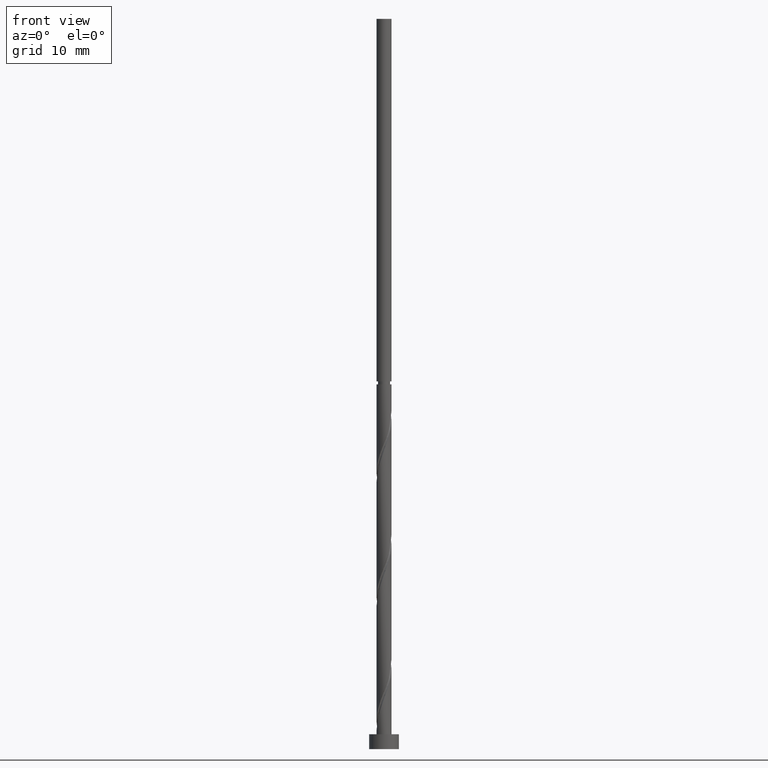
[diagram: clean part render]
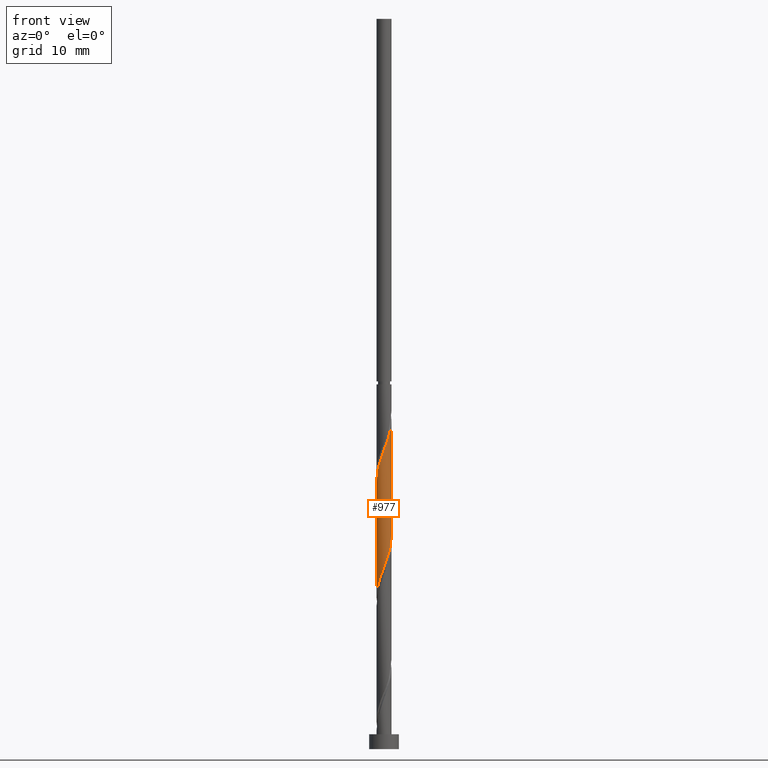
[diagram: same view with one face highlighted and labeled with its STEP entity id]
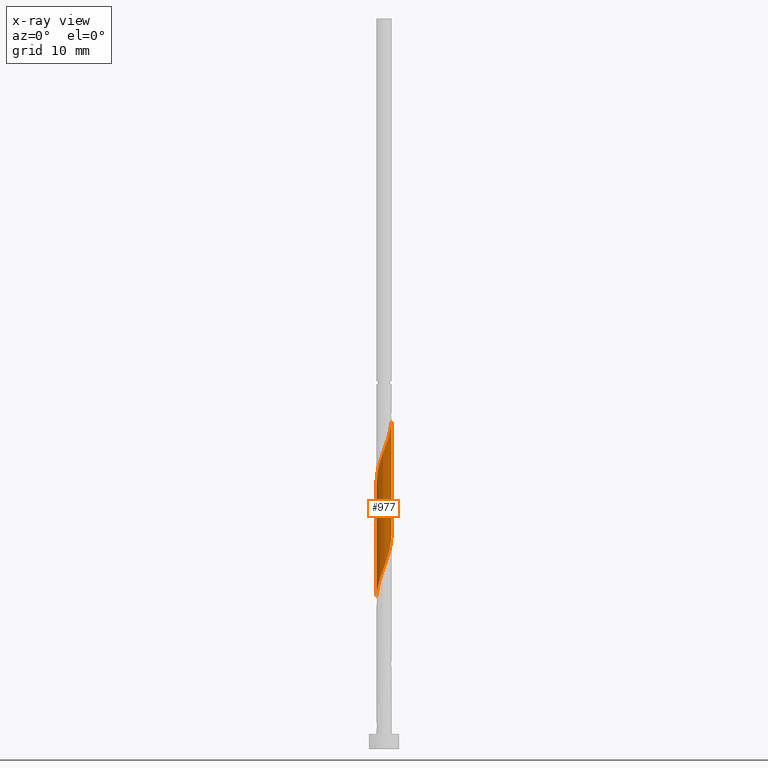
[diagram: x-ray of the same camera — body ghosted, the highlighted face saturated]
A machine part, front view. The second image highlights one B-rep face of the part: STEP entity #977.
The next image is the same camera in x-ray: the body ghosted, the highlighted face saturated — about 0% of this face is hidden behind the body in this view.
In plain terms, the highlighted cylindrical surface (edge-blend (fillet) strip) has radius 1 mm, axis along (-0, -0, -1).
Its self-contained STEP definition (entity closure, byte-faithful):
#1 = EDGE_CURVE ( 'NONE', #1191, #394, #1484, .T. ) ;
#11 = FACE_OUTER_BOUND ( 'NONE', #1418, .T. ) ;
#13 = ORIENTED_EDGE ( 'NONE', *, *, #1165, .F. ) ;
#17 = DIRECTION ( 'NONE',  ( -1.000000000000000000, 0.000000000000000000, 0.000000000000000000 ) ) ;
#74 = CARTESIAN_POINT ( 'NONE',  ( -0.8921910604809015766, -0.4848570054394701900, 21.62982950787138847 ) ) ;
#83 = CARTESIAN_POINT ( 'NONE',  ( 0.6725544933721948615, -0.7607638645273817612, 42.00019987824175871 ) ) ;
#86 = ORIENTED_EDGE ( 'NONE', *, *, #1, .F. ) ;
#93 = CARTESIAN_POINT ( 'NONE',  ( -0.4774909380590728336, -0.8786366735297755914, 38.75945913750101823 ) ) ;
#94 = CARTESIAN_POINT ( 'NONE',  ( 0.4774909380590723895, -0.8786366735297754804, 25.79649617453804922 ) ) ;
#112 = CARTESIAN_POINT ( 'NONE',  ( 0.3717979285156121083, -0.9449113738744321367, 41.07427395231583489 ) ) ;
#152 = CARTESIAN_POINT ( 'NONE',  ( -1.000000000000000000, 0.000000000000000000, 98.00000000000000000 ) ) ;
#159 = VECTOR ( 'NONE', #201, 1000.000000000000000 ) ;
#163 =( BOUNDED_CURVE ( )  B_SPLINE_CURVE ( 2, ( #1211, #933, #798, #539, #774, #1201, #1093, #1356, #94, #944, #1658, #1234, #1523, #1514, #252, #814, #1101, #74, #210, #1343, #634 ),
 .UNSPECIFIED., .F., .T. ) 
 B_SPLINE_CURVE_WITH_KNOTS ( ( 3, 2, 2, 2, 2, 2, 2, 2, 2, 2, 3 ),
 ( 0.5545248053855292847, 0.5555555555555555802, 0.5694444444444444198, 0.5833333333333333703, 0.5972222222222222099, 0.6111111111111111605, 0.6250000000000000000, 0.6388888888888888395, 0.6527777777777777901, 0.6666666666666666297, 0.6795248053855540427 ),
 .UNSPECIFIED. ) 
 CURVE ( )  GEOMETRIC_REPRESENTATION_ITEM ( )  RATIONAL_B_SPLINE_CURVE ( ( 0.9071930855141309147, 0.9080659294509785262, 0.9090909090909183865, 0.8952797754656526275, 0.9090909090909183865, 0.8952797754656526275, 0.9090909090909183865, 0.8952797754656526275, 0.9090909090909183865, 0.8952797754656526275, 0.9090909090909183865, 0.8952797754656526275, 0.9090909090909183865, 0.8952797754656526275, 0.9090909090909183865, 0.8952797754656526275, 0.9090909090909183865, 0.8952797754656526275, 0.9090909090909183865, 0.8963047551055679518, 0.9071930855141728811 ) ) 
 REPRESENTATION_ITEM ( '' )  );
#201 = DIRECTION ( 'NONE',  ( -0.000000000000000000, -0.000000000000000000, -1.000000000000000000 ) ) ;
#210 = CARTESIAN_POINT ( 'NONE',  ( -0.9482036394194104378, -0.3176631206038670885, 21.16686654490841235 ) ) ;
#252 = CARTESIAN_POINT ( 'NONE',  ( -0.5221762109439037625, -0.8528376192009062828, 23.01871839676027065 ) ) ;
#270 = LINE ( 'NONE', #152, #485 ) ;
#299 = DIRECTION ( 'NONE',  ( -0.000000000000000000, -0.000000000000000000, -1.000000000000000000 ) ) ;
#350 = CARTESIAN_POINT ( 'NONE',  ( 0.8921910604809015766, -0.4848570054394704676, 42.92612580416769674 ) ) ;
#362 = CARTESIAN_POINT ( 'NONE',  ( 1.000000000000001332, -6.871924611570983959E-16, 44.24712276769746921 ) ) ;
#392 = CARTESIAN_POINT ( 'NONE',  ( -0.7492061519980943718, -0.6623368793961351697, 37.83353321157508731 ) ) ;
#394 = VERTEX_POINT ( 'NONE', #1536 ) ;
#485 = VECTOR ( 'NONE', #707, 1000.000000000000000 ) ;
#530 = CARTESIAN_POINT ( 'NONE',  ( -0.9951180796480333379, -0.2020673444260032148, 36.44464432268620868 ) ) ;
#531 = VERTEX_POINT ( 'NONE', #1829 ) ;
#539 = CARTESIAN_POINT ( 'NONE',  ( 0.9951180796480333379, -0.2020673444260034091, 28.11131098935286943 ) ) ;
#546 = CARTESIAN_POINT ( 'NONE',  ( -1.000000000000001554, -2.108261653930336723E-15, 35.91378943436414062 ) ) ;
#634 = CARTESIAN_POINT ( 'NONE',  ( -1.000000000000001110, 6.171249733105101995E-13, 20.30883254433996754 ) ) ;
#654 = CARTESIAN_POINT ( 'NONE',  ( 0.7823727769265483856, -0.6228104349834256981, 42.46316284120471352 ) ) ;
#700 = CARTESIAN_POINT ( 'NONE',  ( 1.000000000000001332, -6.871924611570983959E-16, 44.24712276769746921 ) ) ;
#707 = DIRECTION ( 'NONE',  ( -0.000000000000000000, -0.000000000000000000, -1.000000000000000000 ) ) ;
#774 = CARTESIAN_POINT ( 'NONE',  ( 0.9305560469009571678, -0.3661494825560535626, 27.64834802638990396 ) ) ;
#787 = CARTESIAN_POINT ( 'NONE',  ( -0.8659940141538819969, -0.5302316206861042991, 37.37057024861213250 ) ) ;
#798 = CARTESIAN_POINT ( 'NONE',  ( 0.9996671490029762630, -0.02579905432886956188, 28.57427395231581713 ) ) ;
#814 = CARTESIAN_POINT ( 'NONE',  ( -0.6725544933721951946, -0.7607638645273816502, 22.55575543379731229 ) ) ;
#872 = CARTESIAN_POINT ( 'NONE',  ( 0.000000000000000000, 0.000000000000000000, 98.00000000000000000 ) ) ;
#912 = ORIENTED_EDGE ( 'NONE', *, *, #1215, .T. ) ;
#932 = CARTESIAN_POINT ( 'NONE',  ( -1.000000000000001554, -2.108261653930336723E-15, 35.91378943436413351 ) ) ;
#933 = CARTESIAN_POINT ( 'NONE',  ( 1.000000000000001332, -0.01290167433201569805, 28.60814850374258000 ) ) ;
#944 = CARTESIAN_POINT ( 'NONE',  ( 0.3225635862758375882, -0.9628312089533849205, 25.33353321157509441 ) ) ;
#977 = ADVANCED_FACE ( 'NONE', ( #11 ), #1052, .T. ) ;
#1052 = CYLINDRICAL_SURFACE ( 'NONE', #1080, 1.000000000000000000 ) ;
#1061 = CARTESIAN_POINT ( 'NONE',  ( 0.5221762109439035404, -0.8528376192009065049, 41.53723691527878970 ) ) ;
#1080 = AXIS2_PLACEMENT_3D ( 'NONE', #872, #299, #17 ) ;
#1092 = CARTESIAN_POINT ( 'NONE',  ( -1.000000000000001332, -0.01290167433201653419, 35.94780680829648389 ) ) ;
#1093 = CARTESIAN_POINT ( 'NONE',  ( 0.7492061519980940387, -0.6623368793961357248, 26.72242210046396593 ) ) ;
#1101 = CARTESIAN_POINT ( 'NONE',  ( -0.7823727769265482745, -0.6228104349834253650, 22.09279247083434328 ) ) ;
#1165 = EDGE_CURVE ( 'NONE', #394, #531, #163, .T. ) ;
#1191 = VERTEX_POINT ( 'NONE', #700 ) ;
#1200 = VERTEX_POINT ( 'NONE', #546 ) ;
#1201 = CARTESIAN_POINT ( 'NONE',  ( 0.8659940141538814418, -0.5302316206861048542, 27.18538506342693495 ) ) ;
#1211 = CARTESIAN_POINT ( 'NONE',  ( 1.000000000000001554, 8.963379928136170054E-17, 28.64216587767493394 ) ) ;
#1215 = EDGE_CURVE ( 'NONE', #1200, #531, #270, .T. ) ;
#1222 = CARTESIAN_POINT ( 'NONE',  ( 0.9482036394194104378, -0.3176631206038679767, 43.38908876713064444 ) ) ;
#1234 = CARTESIAN_POINT ( 'NONE',  ( -0.02619704632702029440, -1.015088626125574711, 24.40760728564916349 ) ) ;
#1343 = CARTESIAN_POINT ( 'NONE',  ( -1.000000000000101918, -0.1630543718201604986, 20.73875205670640298 ) ) ;
#1354 = CARTESIAN_POINT ( 'NONE',  ( 0.02619704632701955541, -1.015088626125574711, 40.14834802638991818 ) ) ;
#1356 = CARTESIAN_POINT ( 'NONE',  ( 0.6324182898423068577, -0.7944421381061669285, 26.25945913750101113 ) ) ;
#1364 = CARTESIAN_POINT ( 'NONE',  ( -0.9996671490029762630, -0.02579905432886912472, 35.98168135972323256 ) ) ;
#1383 = CARTESIAN_POINT ( 'NONE',  ( -0.3225635862758378658, -0.9628312089533850315, 39.22242210046398725 ) ) ;
#1418 = EDGE_LOOP ( 'NONE', ( #86, #1615, #912, #13 ) ) ;
#1484 = LINE ( 'NONE', #1757, #159 ) ;
#1513 = CARTESIAN_POINT ( 'NONE',  ( -0.9305560469009572788, -0.3661494825560536737, 36.90760728564917770 ) ) ;
#1514 = CARTESIAN_POINT ( 'NONE',  ( -0.3717979285156127189, -0.9449113738744314706, 23.48168135972324322 ) ) ;
#1522 = CARTESIAN_POINT ( 'NONE',  ( 0.1989974874213159828, -0.9800000000000029798, 40.61131098935286587 ) ) ;
#1523 = CARTESIAN_POINT ( 'NONE',  ( -0.1989974874213162048, -0.9800000000000025357, 23.94464432268619092 ) ) ;
#1536 = CARTESIAN_POINT ( 'NONE',  ( 1.000000000000001554, 8.963379928136170054E-17, 28.64216587767493039 ) ) ;
#1614 = CARTESIAN_POINT ( 'NONE',  ( -0.1481832699744091986, -0.9889599175394793162, 39.68538506342694205 ) ) ;
#1615 = ORIENTED_EDGE ( 'NONE', *, *, #1732, .F. ) ;
#1625 = CARTESIAN_POINT ( 'NONE',  ( 1.000000000000001998, -0.1630543718204605919, 43.81720325533184734 ) ) ;
#1658 = CARTESIAN_POINT ( 'NONE',  ( 0.1481832699744088933, -0.9889599175394793162, 24.87057024861212184 ) ) ;
#1674 =( BOUNDED_CURVE ( )  B_SPLINE_CURVE ( 2, ( #932, #1092, #1364, #530, #1513, #787, #392, #1766, #93, #1383, #1614, #1354, #1522, #112, #1061, #83, #654, #350, #1222, #1625, #362 ),
 .UNSPECIFIED., .F., .T. ) 
 B_SPLINE_CURVE_WITH_KNOTS ( ( 3, 2, 2, 2, 2, 2, 2, 2, 2, 2, 3 ),
 ( 0.5545248053855293957, 0.5555555555555555802, 0.5694444444444444198, 0.5833333333333332593, 0.5972222222222222099, 0.6111111111111111605, 0.6250000000000000000, 0.6388888888888888395, 0.6527777777777777901, 0.6666666666666667407, 0.6795248053855295067 ),
 .UNSPECIFIED. ) 
 CURVE ( )  GEOMETRIC_REPRESENTATION_ITEM ( )  RATIONAL_B_SPLINE_CURVE ( ( 0.9071930855141416838, 0.9080659294509891843, 0.9090909090909289336, 0.8952797754656631746, 0.9090909090909289336, 0.8952797754656631746, 0.9090909090909289336, 0.8952797754656631746, 0.9090909090909289336, 0.8952797754656631746, 0.9090909090909289336, 0.8952797754656631746, 0.9090909090909289336, 0.8952797754656631746, 0.9090909090909289336, 0.8952797754656631746, 0.9090909090909289336, 0.8952797754656631746, 0.9090909090909289336, 0.8963047551056029238, 0.9071930855141419059 ) ) 
 REPRESENTATION_ITEM ( '' )  );
#1732 = EDGE_CURVE ( 'NONE', #1200, #1191, #1674, .T. ) ;
#1757 = CARTESIAN_POINT ( 'NONE',  ( 1.000000000000000000, 1.224646799147353207E-16, 98.00000000000000000 ) ) ;
#1766 = CARTESIAN_POINT ( 'NONE',  ( -0.6324182898423071908, -0.7944421381061670395, 38.29649617453806343 ) ) ;
#1829 = CARTESIAN_POINT ( 'NONE',  ( -1.000000000000001110, 6.171249733105101995E-13, 20.30883254433996754 ) ) ;